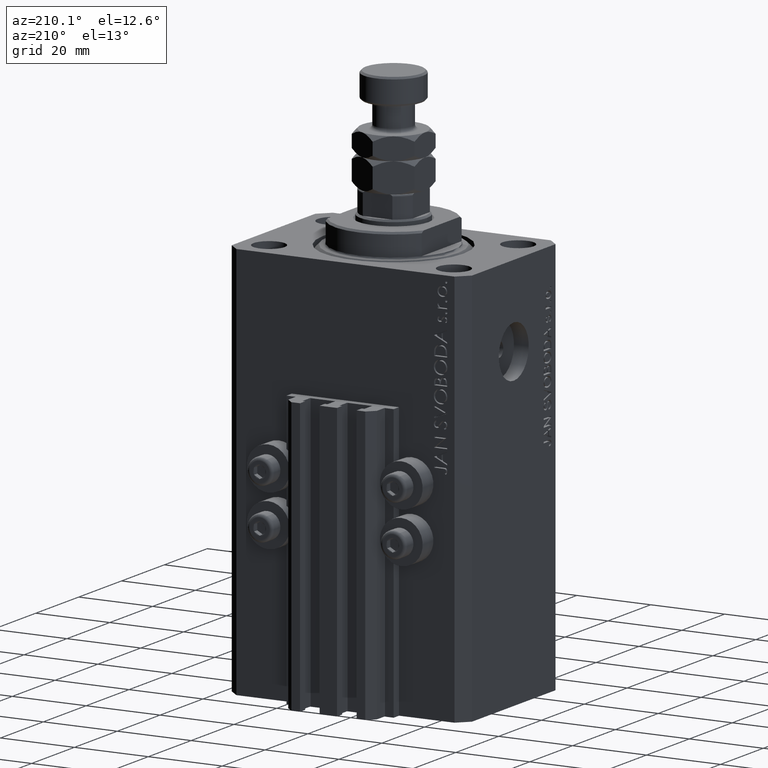
[diagram: clean part render]
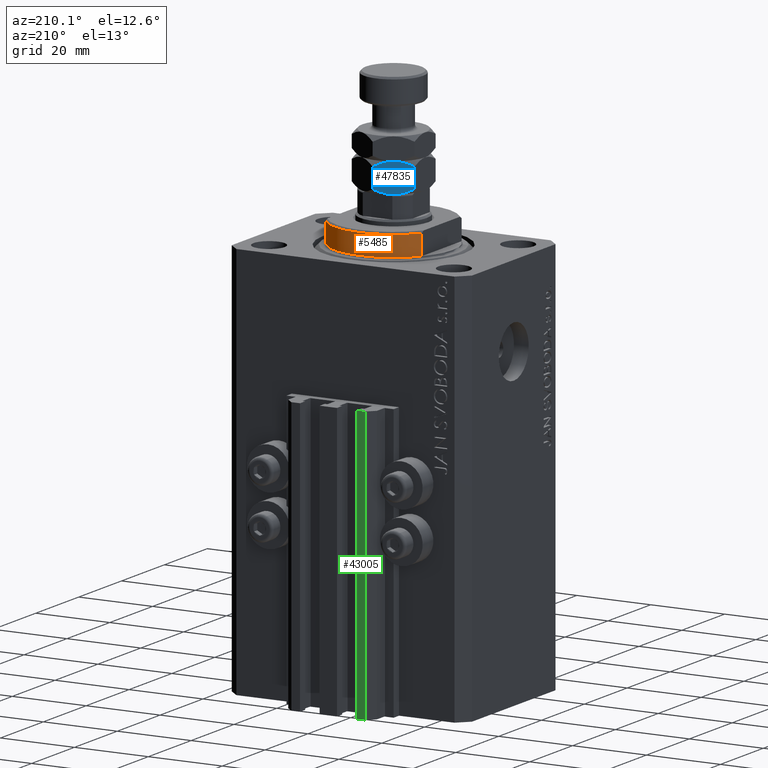
[diagram: same view with three faces highlighted in distinct colors, each labeled with its STEP entity id]
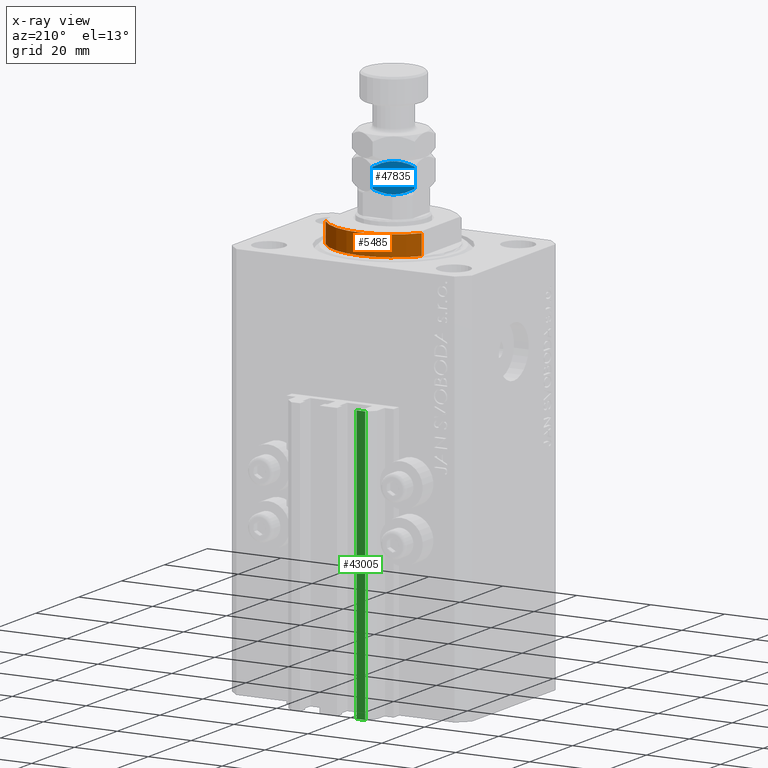
[diagram: x-ray of the same camera — body ghosted, the three highlighted faces saturated]
A machine part, auxiliary view with three faces highlighted in distinct colors.
The next image is the same camera in x-ray (body ghosted, the three faces saturated) — at least one of them is partly hidden behind the body in this view.
Their STEP definitions:

[orange] entity #5485 — the highlighted cylindrical surface (partial cylindrical patch) has radius 16 mm, axis along (0, 0, -1).
#3905 = DIRECTION ( 'NONE',  ( -0.000000000000000000, -0.000000000000000000, 1.000000000000000000 ) ) ;
#4609 = VECTOR ( 'NONE', #46166, 1000.000000000000000 ) ;
#5485 = ADVANCED_FACE ( 'NONE', ( #22717 ), #44507, .T. ) ;
#6289 = VERTEX_POINT ( 'NONE', #33862 ) ;
#7552 = CARTESIAN_POINT ( 'NONE',  ( 0.000000000000000000, 0.000000000000000000, -6.000000000000030198 ) ) ;
#7618 = ORIENTED_EDGE ( 'NONE', *, *, #29473, .F. ) ;
#10335 = DIRECTION ( 'NONE',  ( 0.000000000000000000, 0.000000000000000000, 1.000000000000000000 ) ) ;
#11408 = EDGE_LOOP ( 'NONE', ( #7618, #24709, #18654, #36274 ) ) ;
#13032 = CARTESIAN_POINT ( 'NONE',  ( -13.00000000000000000, 9.327379053088815652, -0.4999999999999995559 ) ) ;
#13803 = DIRECTION ( 'NONE',  ( -1.000000000000000000, 0.000000000000000000, 0.000000000000000000 ) ) ;
#13866 = AXIS2_PLACEMENT_3D ( 'NONE', #37128, #48274, #48757 ) ;
#15939 = VERTEX_POINT ( 'NONE', #13032 ) ;
#18654 = ORIENTED_EDGE ( 'NONE', *, *, #24000, .T. ) ;
#18948 = LINE ( 'NONE', #19436, #4609 ) ;
#19228 = CARTESIAN_POINT ( 'NONE',  ( 0.000000000000000000, 0.000000000000000000, -6.500000000000000000 ) ) ;
#19436 = CARTESIAN_POINT ( 'NONE',  ( -13.00000000000000000, 9.327379053088813876, -6.500000000000000000 ) ) ;
#20120 = CARTESIAN_POINT ( 'NONE',  ( -13.00000000000000000, 9.327379053088916905, -6.000000000000021316 ) ) ;
#20362 = DIRECTION ( 'NONE',  ( -0.000000000000000000, -0.000000000000000000, 1.000000000000000000 ) ) ;
#22717 = FACE_OUTER_BOUND ( 'NONE', #11408, .T. ) ;
#24000 = EDGE_CURVE ( 'NONE', #40906, #15939, #18948, .T. ) ;
#24709 = ORIENTED_EDGE ( 'NONE', *, *, #46483, .T. ) ;
#26286 = AXIS2_PLACEMENT_3D ( 'NONE', #19228, #3905, #30365 ) ;
#28867 = CIRCLE ( 'NONE', #13866, 16.00000000000000000 ) ;
#29473 = EDGE_CURVE ( 'NONE', #6289, #41511, #42884, .T. ) ;
#30365 = DIRECTION ( 'NONE',  ( 1.000000000000000000, 0.000000000000000000, 0.000000000000000000 ) ) ;
#30764 = CARTESIAN_POINT ( 'NONE',  ( 13.00000000000000000, 9.327379053088813876, -6.500000000000000000 ) ) ;
#30952 = EDGE_CURVE ( 'NONE', #15939, #41511, #28867, .T. ) ;
#31206 = CIRCLE ( 'NONE', #43867, 16.00000000000000000 ) ;
#32014 = VECTOR ( 'NONE', #20362, 1000.000000000000000 ) ;
#33862 = CARTESIAN_POINT ( 'NONE',  ( 13.00000000000000000, 9.327379053088916905, -6.000000000000021316 ) ) ;
#35578 = CARTESIAN_POINT ( 'NONE',  ( 13.00000000000000000, 9.327379053088815652, -0.4999999999999995559 ) ) ;
#36274 = ORIENTED_EDGE ( 'NONE', *, *, #30952, .T. ) ;
#37128 = CARTESIAN_POINT ( 'NONE',  ( 0.000000000000000000, 0.000000000000000000, -0.4999999999999995559 ) ) ;
#40906 = VERTEX_POINT ( 'NONE', #20120 ) ;
#41511 = VERTEX_POINT ( 'NONE', #35578 ) ;
#42884 = LINE ( 'NONE', #30764, #32014 ) ;
#43867 = AXIS2_PLACEMENT_3D ( 'NONE', #7552, #10335, #13803 ) ;
#44507 = CYLINDRICAL_SURFACE ( 'NONE', #26286, 16.00000000000000000 ) ;
#46166 = DIRECTION ( 'NONE',  ( -0.000000000000000000, -0.000000000000000000, 1.000000000000000000 ) ) ;
#46483 = EDGE_CURVE ( 'NONE', #6289, #40906, #31206, .T. ) ;
#48274 = DIRECTION ( 'NONE',  ( -0.000000000000000000, -0.000000000000000000, -1.000000000000000000 ) ) ;
#48757 = DIRECTION ( 'NONE',  ( 1.000000000000000000, -8.881784197001252323E-16, 0.000000000000000000 ) ) ;

[blue] entity #47835 — the highlighted planar face has unit normal (0.5, -0.866, 0).
#1623 = VERTEX_POINT ( 'NONE', #43050 ) ;
#2186 = ORIENTED_EDGE ( 'NONE', *, *, #37366, .F. ) ;
#3173 = B_SPLINE_CURVE_WITH_KNOTS ( 'NONE', 3,
 ( #23031, #38122, #14884, #26021, #44848, #4219 ),
 .UNSPECIFIED., .F., .F.,
 ( 4, 2, 4 ),
 ( 0.005087299150080244227, 0.007613005268011861781, 0.01013871138594347847 ),
 .UNSPECIFIED. ) ;
#3260 = CARTESIAN_POINT ( 'NONE',  ( -6.092930036521920556, 6.297199779484152771, 0.2536240893246534123 ) ) ;
#4219 = CARTESIAN_POINT ( 'NONE',  ( 1.960053746949402388E-16, 9.814954576223636096, 1.314954576223628546 ) ) ;
#5690 = CARTESIAN_POINT ( 'NONE',  ( 1.960053746949402388E-16, 9.814954576223636096, 1.314954576223628546 ) ) ;
#6492 = CARTESIAN_POINT ( 'NONE',  ( -7.151994807070144233, 5.685748449118888104, 0.6032092124201268168 ) ) ;
#8349 = EDGE_CURVE ( 'NONE', #32020, #24769, #21671, .T. ) ;
#8361 = AXIS2_PLACEMENT_3D ( 'NONE', #32349, #40273, #43737 ) ;
#10691 = CARTESIAN_POINT ( 'NONE',  ( -4.249999999999996447, 7.361215932167731957, 0.000000000000000000 ) ) ;
#13006 = VERTEX_POINT ( 'NONE', #27598 ) ;
#13603 = LINE ( 'NONE', #28699, #27798 ) ;
#13752 = EDGE_CURVE ( 'NONE', #32020, #30226, #32411, .T. ) ;
#14406 = CARTESIAN_POINT ( 'NONE',  ( -5.733718739115173157, 6.504590518737894733, 0.1608217079418319817 ) ) ;
#14778 = CARTESIAN_POINT ( 'NONE',  ( -2.407069963478076779, 8.425232084851307590, 7.746375910675348919 ) ) ;
#14884 = CARTESIAN_POINT ( 'NONE',  ( -2.784079206026081721, 8.207565697179243003, 0.1305202873832130295 ) ) ;
#17217 = DIRECTION ( 'NONE',  ( -0.000000000000000000, -0.000000000000000000, -1.000000000000000000 ) ) ;
#17452 = EDGE_CURVE ( 'NONE', #42484, #13006, #42181, .T. ) ;
#17995 = CARTESIAN_POINT ( 'NONE',  ( -3.877770021349439045, 7.576123010542077374, 8.000000000000001776 ) ) ;
#18586 = EDGE_CURVE ( 'NONE', #13006, #24769, #3173, .T. ) ;
#19645 = EDGE_CURVE ( 'NONE', #1623, #42484, #13603, .T. ) ;
#21186 = ORIENTED_EDGE ( 'NONE', *, *, #13752, .F. ) ;
#21671 = LINE ( 'NONE', #33051, #47792 ) ;
#22676 = CARTESIAN_POINT ( 'NONE',  ( -7.149107353189443792, 5.687415521394179940, 7.399061587263880746 ) ) ;
#23031 = CARTESIAN_POINT ( 'NONE',  ( -4.249999999999996447, 7.361215932167731957, 0.000000000000000000 ) ) ;
#24769 = VERTEX_POINT ( 'NONE', #5690 ) ;
#25412 = EDGE_LOOP ( 'NONE', ( #42476, #46722, #2186, #21186, #33754, #44573 ) ) ;
#25656 = CARTESIAN_POINT ( 'NONE',  ( -5.715920793973915615, 6.514866167156221799, 7.869479712616790579 ) ) ;
#26021 = CARTESIAN_POINT ( 'NONE',  ( -1.350892646810552433, 9.035016342941277756, 0.6009384127361191430 ) ) ;
#27598 = CARTESIAN_POINT ( 'NONE',  ( -4.249999999999996447, 7.361215932167731957, 0.000000000000000000 ) ) ;
#27798 = VECTOR ( 'NONE', #43809, 1000.000000000000000 ) ;
#28699 = CARTESIAN_POINT ( 'NONE',  ( -8.500000000000001776, 4.907477288111821601, 8.000000000000000000 ) ) ;
#28882 = FACE_OUTER_BOUND ( 'NONE', #25412, .T. ) ;
#29136 = CARTESIAN_POINT ( 'NONE',  ( -4.249999999999994671, 7.361215932167727516, 8.000000000000000000 ) ) ;
#29492 = CARTESIAN_POINT ( 'NONE',  ( -5.000029324638989081, 6.928186299687298266, 0.03373674959836554799 ) ) ;
#30226 = VERTEX_POINT ( 'NONE', #29136 ) ;
#32020 = VERTEX_POINT ( 'NONE', #40416 ) ;
#32349 = CARTESIAN_POINT ( 'NONE',  ( 0.000000000000000000, 9.814954576223636096, 8.000000000000000000 ) ) ;
#32411 = B_SPLINE_CURVE_WITH_KNOTS ( 'NONE', 3,
 ( #40772, #33579, #44239, #14778, #36814, #44731, #17995, #47965 ),
 .UNSPECIFIED., .F., .F.,
 ( 4, 2, 2, 4 ),
 ( 2.544313836662431582E-07, 0.002543776790731950600, 0.003815537970406090908, 0.005087299150080232084 ),
 .UNSPECIFIED. ) ;
#33051 = CARTESIAN_POINT ( 'NONE',  ( 0.000000000000000000, 9.814954576223636096, 8.000000000000000000 ) ) ;
#33579 = CARTESIAN_POINT ( 'NONE',  ( -0.6664608216042845479, 9.430173241466064837, 7.069826758533944044 ) ) ;
#33754 = ORIENTED_EDGE ( 'NONE', *, *, #8349, .T. ) ;
#36814 = CARTESIAN_POINT ( 'NONE',  ( -2.766281260884825510, 8.217841345597568292, 7.839178292058173625 ) ) ;
#37286 = CARTESIAN_POINT ( 'NONE',  ( -4.249999999999994671, 7.361215932167727516, 8.000000000000000000 ) ) ;
#37366 = EDGE_CURVE ( 'NONE', #30226, #1623, #45960, .T. ) ;
#37771 = CARTESIAN_POINT ( 'NONE',  ( -8.500000000000001776, 4.907477288111821601, 1.314954576223634097 ) ) ;
#37776 = CARTESIAN_POINT ( 'NONE',  ( -7.834310611062749174, 5.291813236011422283, 7.069381371676069392 ) ) ;
#38122 = CARTESIAN_POINT ( 'NONE',  ( -3.510754653168324246, 7.788019432158175270, -2.226002585384300502E-15 ) ) ;
#40273 = DIRECTION ( 'NONE',  ( 0.4999999999999995559, -0.8660254037844389297, 0.000000000000000000 ) ) ;
#40397 = CARTESIAN_POINT ( 'NONE',  ( -8.500000000000001776, 4.907477288111821601, 1.314954576223634097 ) ) ;
#40416 = CARTESIAN_POINT ( 'NONE',  ( -2.175848833159079736E-16, 9.814954576223636096, 6.685045423776372786 ) ) ;
#40513 = CARTESIAN_POINT ( 'NONE',  ( -4.989245346831672201, 6.934412432177284202, 8.000000000000005329 ) ) ;
#40772 = CARTESIAN_POINT ( 'NONE',  ( -2.175848833159079736E-16, 9.814954576223636096, 6.685045423776372786 ) ) ;
#42181 = B_SPLINE_CURVE_WITH_KNOTS ( 'NONE', 3,
 ( #40397, #48321, #6492, #3260, #14406, #29492, #44597, #10691 ),
 .UNSPECIFIED., .F., .F.,
 ( 4, 2, 2, 4 ),
 ( 2.544313836674336100E-07, 0.002543776790731957973, 0.003815537970406101317, 0.005087299150080244227 ),
 .UNSPECIFIED. ) ;
#42476 = ORIENTED_EDGE ( 'NONE', *, *, #17452, .F. ) ;
#42484 = VERTEX_POINT ( 'NONE', #37771 ) ;
#43050 = CARTESIAN_POINT ( 'NONE',  ( -8.500000000000001776, 4.907477288111821601, 6.685045423776368345 ) ) ;
#43737 = DIRECTION ( 'NONE',  ( 0.8660254037844389297, 0.4999999999999995559, 0.000000000000000000 ) ) ;
#43809 = DIRECTION ( 'NONE',  ( -0.000000000000000000, -0.000000000000000000, -1.000000000000000000 ) ) ;
#43993 = PLANE ( 'NONE',  #8361 ) ;
#44239 = CARTESIAN_POINT ( 'NONE',  ( -1.348005192929855323, 9.036683415216572257, 7.396790787579877069 ) ) ;
#44573 = ORIENTED_EDGE ( 'NONE', *, *, #18586, .F. ) ;
#44597 = CARTESIAN_POINT ( 'NONE',  ( -4.622229978650556070, 7.146308853793382987, -2.126899730555548151E-15 ) ) ;
#44731 = CARTESIAN_POINT ( 'NONE',  ( -3.499970675361005590, 7.794245564648163871, 7.966263250401637741 ) ) ;
#44848 = CARTESIAN_POINT ( 'NONE',  ( -0.6656893889372521578, 9.430618628324037189, 0.9306186283239277213 ) ) ;
#45437 = CARTESIAN_POINT ( 'NONE',  ( -8.500000000000001776, 4.907477288111821601, 6.685045423776368345 ) ) ;
#45960 = B_SPLINE_CURVE_WITH_KNOTS ( 'NONE', 3,
 ( #37286, #40513, #25656, #22676, #37776, #45437 ),
 .UNSPECIFIED., .F., .F.,
 ( 4, 2, 4 ),
 ( 0.005087299150080232084, 0.007613005268011854842, 0.01013871138594347847 ),
 .UNSPECIFIED. ) ;
#46722 = ORIENTED_EDGE ( 'NONE', *, *, #19645, .F. ) ;
#47792 = VECTOR ( 'NONE', #17217, 1000.000000000000000 ) ;
#47835 = ADVANCED_FACE ( 'NONE', ( #28882 ), #43993, .F. ) ;
#47965 = CARTESIAN_POINT ( 'NONE',  ( -4.249999999999994671, 7.361215932167727516, 8.000000000000000000 ) ) ;
#48321 = CARTESIAN_POINT ( 'NONE',  ( -7.833539178395718672, 5.292258622869395523, 0.9301732414660626169 ) ) ;

[green] entity #43005 — the highlighted planar face has unit normal (0, 1, 0).
#1843 = DIRECTION ( 'NONE',  ( 1.476360405086644852E-15, 1.000000000000000000, -0.000000000000000000 ) ) ;
#1993 = VERTEX_POINT ( 'NONE', #14698 ) ;
#3840 = DIRECTION ( 'NONE',  ( 0.000000000000000000, 0.000000000000000000, 1.000000000000000000 ) ) ;
#4282 = CARTESIAN_POINT ( 'NONE',  ( -10.00000000000000000, 30.49999999999948841, -107.0000000000000000 ) ) ;
#5246 = VECTOR ( 'NONE', #3840, 1000.000000000000000 ) ;
#5997 = VERTEX_POINT ( 'NONE', #48361 ) ;
#6776 = CARTESIAN_POINT ( 'NONE',  ( -7.650000000000000355, 30.49999999999948486, -107.0000000000000000 ) ) ;
#7563 = CARTESIAN_POINT ( 'NONE',  ( -7.650000000000000355, 30.49999999999948486, -107.0000000000000000 ) ) ;
#8243 = VECTOR ( 'NONE', #14833, 1000.000000000000000 ) ;
#8667 = ORIENTED_EDGE ( 'NONE', *, *, #17733, .F. ) ;
#9198 = VERTEX_POINT ( 'NONE', #21192 ) ;
#13712 = AXIS2_PLACEMENT_3D ( 'NONE', #32307, #1843, #32057 ) ;
#14698 = CARTESIAN_POINT ( 'NONE',  ( -10.00000000000000000, 30.49999999999948841, -107.0000000000000000 ) ) ;
#14833 = DIRECTION ( 'NONE',  ( -1.000000000000000000, 1.476360405086644852E-15, 0.000000000000000000 ) ) ;
#15459 = VECTOR ( 'NONE', #22364, 1000.000000000000000 ) ;
#15761 = ORIENTED_EDGE ( 'NONE', *, *, #21280, .T. ) ;
#17733 = EDGE_CURVE ( 'NONE', #48993, #9198, #19019, .T. ) ;
#19019 = LINE ( 'NONE', #26700, #8243 ) ;
#19905 = LINE ( 'NONE', #7563, #5246 ) ;
#21192 = CARTESIAN_POINT ( 'NONE',  ( -10.00000000000000000, 30.49999999999948841, -33.00000000000000000 ) ) ;
#21280 = EDGE_CURVE ( 'NONE', #1993, #9198, #33510, .T. ) ;
#22364 = DIRECTION ( 'NONE',  ( 0.000000000000000000, 0.000000000000000000, 1.000000000000000000 ) ) ;
#26700 = CARTESIAN_POINT ( 'NONE',  ( -7.650000000000000355, 30.49999999999948486, -33.00000000000000000 ) ) ;
#27281 = VECTOR ( 'NONE', #40427, 1000.000000000000000 ) ;
#28362 = EDGE_LOOP ( 'NONE', ( #8667, #36907, #48011, #15761 ) ) ;
#32057 = DIRECTION ( 'NONE',  ( -1.000000000000000000, 1.476360405086644852E-15, 0.000000000000000000 ) ) ;
#32307 = CARTESIAN_POINT ( 'NONE',  ( -7.650000000000000355, 30.49999999999948486, -107.0000000000000000 ) ) ;
#32690 = EDGE_CURVE ( 'NONE', #5997, #48993, #19905, .T. ) ;
#32874 = EDGE_CURVE ( 'NONE', #5997, #1993, #44151, .T. ) ;
#33510 = LINE ( 'NONE', #4282, #15459 ) ;
#35765 = PLANE ( 'NONE',  #13712 ) ;
#36014 = FACE_OUTER_BOUND ( 'NONE', #28362, .T. ) ;
#36907 = ORIENTED_EDGE ( 'NONE', *, *, #32690, .F. ) ;
#40427 = DIRECTION ( 'NONE',  ( -1.000000000000000000, 1.476360405086644852E-15, 0.000000000000000000 ) ) ;
#43005 = ADVANCED_FACE ( 'NONE', ( #36014 ), #35765, .T. ) ;
#44151 = LINE ( 'NONE', #6776, #27281 ) ;
#44748 = CARTESIAN_POINT ( 'NONE',  ( -7.650000000000000355, 30.49999999999948486, -33.00000000000000000 ) ) ;
#48011 = ORIENTED_EDGE ( 'NONE', *, *, #32874, .T. ) ;
#48361 = CARTESIAN_POINT ( 'NONE',  ( -7.650000000000000355, 30.49999999999948486, -107.0000000000000000 ) ) ;
#48993 = VERTEX_POINT ( 'NONE', #44748 ) ;